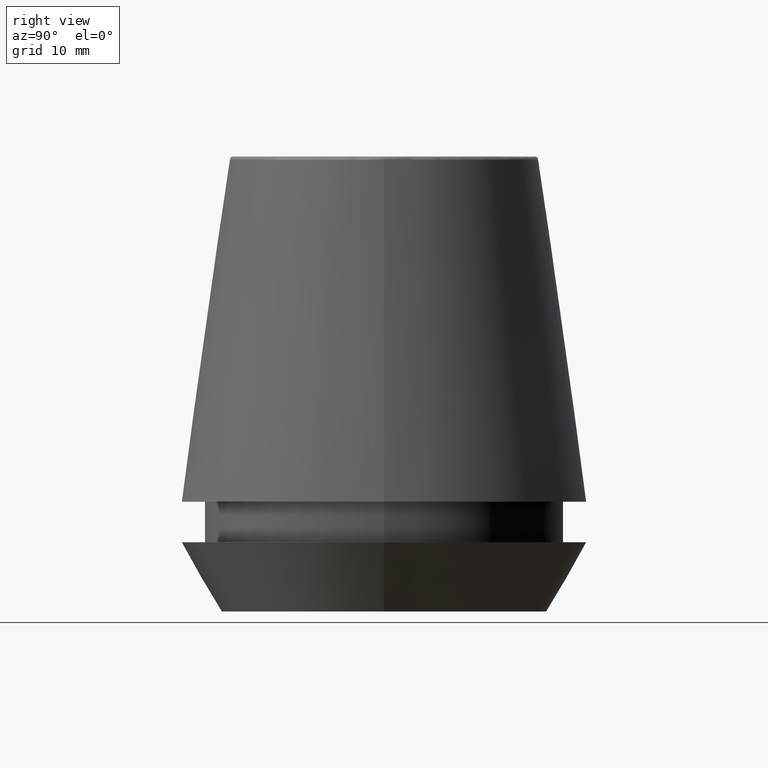
[diagram: clean part render]
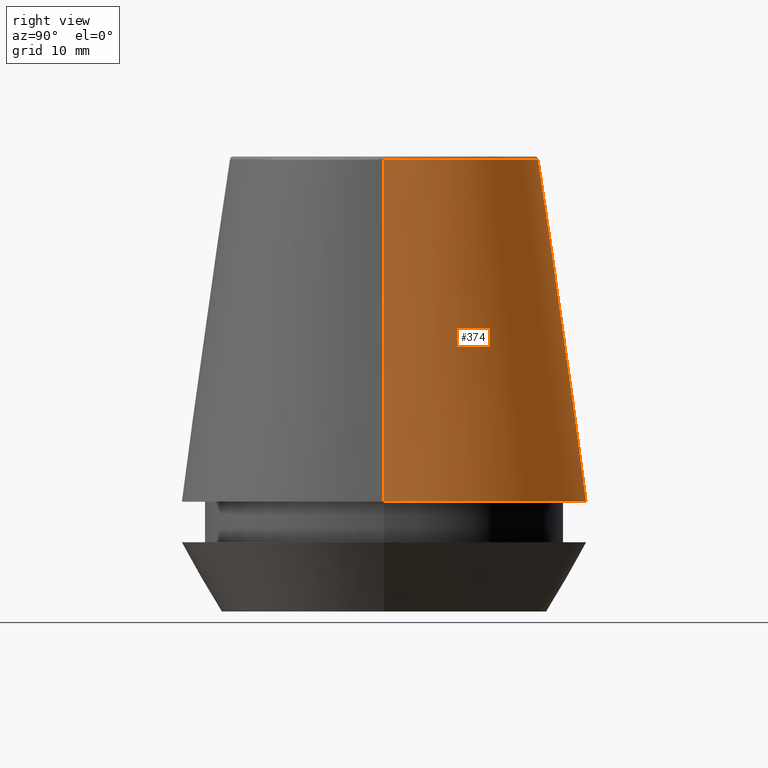
[diagram: same view with one face highlighted and labeled with its STEP entity id]
A machine part, right view. The second image highlights one B-rep face of the part: STEP entity #374.
In plain terms, the highlighted conical surface has half-angle 8 deg.
Its self-contained STEP definition (entity closure, byte-faithful):
#15 = DIRECTION ( 'NONE',  ( 0.0000000000000000000, 0.0000000000000000000, -1.000000000000000000 ) ) ;
#19 = VERTEX_POINT ( 'NONE', #194 ) ;
#31 = FACE_OUTER_BOUND ( 'NONE', #62, .T. ) ;
#35 = AXIS2_PLACEMENT_3D ( 'NONE', #38, #248, #70 ) ;
#38 = CARTESIAN_POINT ( 'NONE',  ( 0.0000000000000000000, 0.0000000000000000000, 45.65566924038402900 ) ) ;
#44 = VERTEX_POINT ( 'NONE', #372 ) ;
#48 = EDGE_CURVE ( 'NONE', #19, #94, #236, .T. ) ;
#53 = ORIENTED_EDGE ( 'NONE', *, *, #232, .T. ) ;
#54 = CARTESIAN_POINT ( 'NONE',  ( -20.50032537154048700, 0.0000000000000000000, 11.09999999999999800 ) ) ;
#62 = EDGE_LOOP ( 'NONE', ( #181, #53, #371, #84 ) ) ;
#70 = DIRECTION ( 'NONE',  ( 1.000000000000000000, 0.0000000000000000000, 0.0000000000000000000 ) ) ;
#78 = AXIS2_PLACEMENT_3D ( 'NONE', #350, #99, #320 ) ;
#84 = ORIENTED_EDGE ( 'NONE', *, *, #381, .F. ) ;
#94 = VERTEX_POINT ( 'NONE', #351 ) ;
#99 = DIRECTION ( 'NONE',  ( -0.0000000000000000000, -0.0000000000000000000, 1.000000000000000000 ) ) ;
#103 = EDGE_CURVE ( 'NONE', #44, #189, #201, .T. ) ;
#106 = CARTESIAN_POINT ( 'NONE',  ( -20.50032537154048700, 0.0000000000000000000, 11.09999999999999800 ) ) ;
#111 = VECTOR ( 'NONE', #116, 1000.000000000000000 ) ;
#116 = DIRECTION ( 'NONE',  ( 0.1391731009600587200, 1.704378926181473400E-017, -0.9902680687415712500 ) ) ;
#152 = AXIS2_PLACEMENT_3D ( 'NONE', #230, #15, #312 ) ;
#153 = LINE ( 'NONE', #106, #317 ) ;
#181 = ORIENTED_EDGE ( 'NONE', *, *, #48, .F. ) ;
#189 = VERTEX_POINT ( 'NONE', #54 ) ;
#194 = CARTESIAN_POINT ( 'NONE',  ( 15.64384277279740400, 2.213191991290356800E-015, 45.65566924038402900 ) ) ;
#201 = CIRCLE ( 'NONE', #78, 20.50032537154048700 ) ;
#206 = CONICAL_SURFACE ( 'NONE', #152, 20.50032537154048700, 0.1396263401595396200 ) ;
#230 = CARTESIAN_POINT ( 'NONE',  ( 0.0000000000000000000, 0.0000000000000000000, 11.09999999999999800 ) ) ;
#232 = EDGE_CURVE ( 'NONE', #19, #44, #262, .T. ) ;
#236 = CIRCLE ( 'NONE', #35, 15.64384277279740400 ) ;
#248 = DIRECTION ( 'NONE',  ( -0.0000000000000000000, -0.0000000000000000000, 1.000000000000000000 ) ) ;
#262 = LINE ( 'NONE', #341, #111 ) ;
#312 = DIRECTION ( 'NONE',  ( -1.000000000000000000, 0.0000000000000000000, 0.0000000000000000000 ) ) ;
#317 = VECTOR ( 'NONE', #332, 1000.000000000000000 ) ;
#320 = DIRECTION ( 'NONE',  ( 1.000000000000000000, 0.0000000000000000000, 0.0000000000000000000 ) ) ;
#332 = DIRECTION ( 'NONE',  ( -0.1391731009600587200, 0.0000000000000000000, -0.9902680687415712500 ) ) ;
#341 = CARTESIAN_POINT ( 'NONE',  ( 20.50032537154048700, 2.510565784773633700E-015, 11.09999999999999800 ) ) ;
#350 = CARTESIAN_POINT ( 'NONE',  ( 0.0000000000000000000, 0.0000000000000000000, 11.09999999999999800 ) ) ;
#351 = CARTESIAN_POINT ( 'NONE',  ( -15.64384277279740400, 0.0000000000000000000, 45.65566924038402900 ) ) ;
#371 = ORIENTED_EDGE ( 'NONE', *, *, #103, .T. ) ;
#372 = CARTESIAN_POINT ( 'NONE',  ( 20.50032537154048700, 2.510565784773633700E-015, 11.09999999999999800 ) ) ;
#374 = ADVANCED_FACE ( 'NONE', ( #31 ), #206, .T. ) ;
#381 = EDGE_CURVE ( 'NONE', #94, #189, #153, .T. ) ;